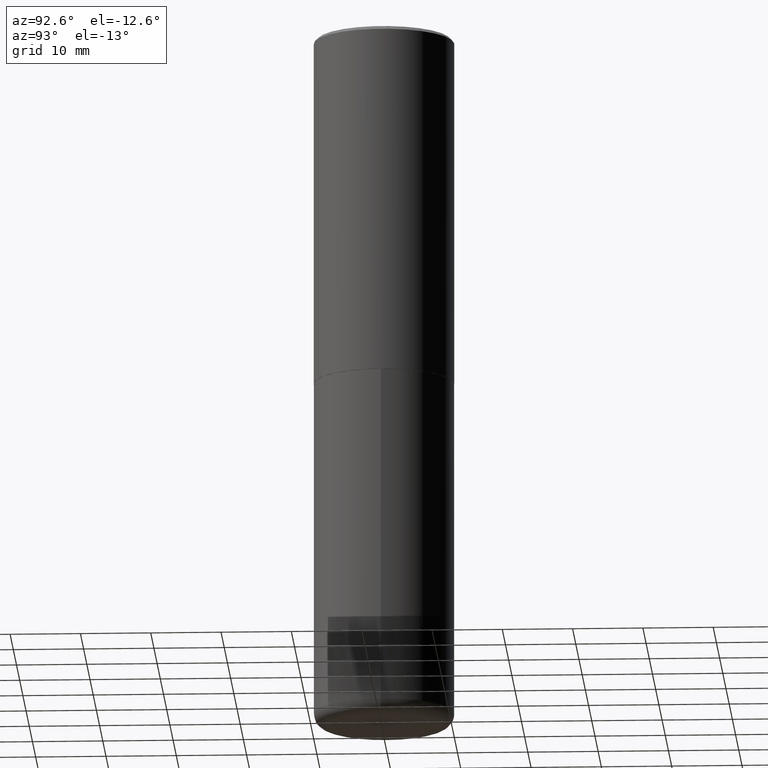
[diagram: clean part render]
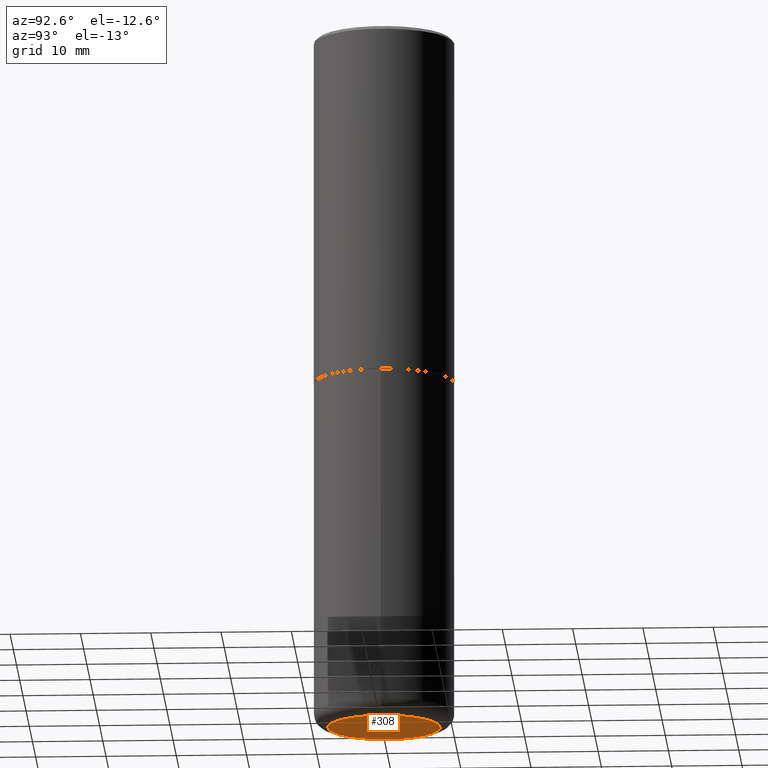
[diagram: same view with one face highlighted and labeled with its STEP entity id]
A machine part, auxiliary view. The second image highlights one B-rep face of the part: STEP entity #308.
In plain terms, the highlighted planar face has unit normal (0, -0, -1).
Its self-contained STEP definition (entity closure, byte-faithful):
#6 = VERTEX_POINT ( 'NONE', #68 ) ;
#17 = FACE_OUTER_BOUND ( 'NONE', #153, .T. ) ;
#43 = PLANE ( 'NONE',  #381 ) ;
#60 = AXIS2_PLACEMENT_3D ( 'NONE', #310, #377, #213 ) ;
#68 = CARTESIAN_POINT ( 'NONE',  ( -0.3150000000000000577, -1.109076405617607056E-14, -3.937000000000000721 ) ) ;
#87 = CIRCLE ( 'NONE', #60, 0.3150000000000000577 ) ;
#141 = CIRCLE ( 'NONE', #304, 0.3150000000000000577 ) ;
#153 = EDGE_LOOP ( 'NONE', ( #164, #361 ) ) ;
#164 = ORIENTED_EDGE ( 'NONE', *, *, #227, .F. ) ;
#179 = VERTEX_POINT ( 'NONE', #401 ) ;
#212 = DIRECTION ( 'NONE',  ( 2.438088387897960049E-29, -3.491481338843145188E-15, -1.000000000000000000 ) ) ;
#213 = DIRECTION ( 'NONE',  ( 1.000000000000000000, -6.982962677686267499E-15, 0.000000000000000000 ) ) ;
#227 = EDGE_CURVE ( 'NONE', #179, #6, #87, .T. ) ;
#240 = DIRECTION ( 'NONE',  ( 1.000000000000000000, -6.982962677686267499E-15, 0.000000000000000000 ) ) ;
#252 = DIRECTION ( 'NONE',  ( -2.445468806185136597E-29, 3.491481338843145583E-15, 1.000000000000000000 ) ) ;
#282 = DIRECTION ( 'NONE',  ( -1.000000000000000000, 6.982962677686265922E-15, -4.876176775795935793E-29 ) ) ;
#290 = EDGE_CURVE ( 'NONE', #6, #179, #141, .T. ) ;
#304 = AXIS2_PLACEMENT_3D ( 'NONE', #338, #252, #240 ) ;
#306 = CARTESIAN_POINT ( 'NONE',  ( 4.859318144497942927E-29, -2.057471476185479592E-14, -3.937000000000000277 ) ) ;
#308 = ADVANCED_FACE ( 'NONE', ( #17 ), #43, .T. ) ;
#310 = CARTESIAN_POINT ( 'NONE',  ( 9.627810689950884790E-29, -1.374596203102546657E-14, -3.937000000000000721 ) ) ;
#338 = CARTESIAN_POINT ( 'NONE',  ( 9.627810689950884790E-29, -1.374596203102546657E-14, -3.937000000000000721 ) ) ;
#361 = ORIENTED_EDGE ( 'NONE', *, *, #290, .F. ) ;
#377 = DIRECTION ( 'NONE',  ( -2.445468806185136597E-29, 3.491481338843145583E-15, 1.000000000000000000 ) ) ;
#381 = AXIS2_PLACEMENT_3D ( 'NONE', #306, #212, #282 ) ;
#401 = CARTESIAN_POINT ( 'NONE',  ( 0.3150000000000000577, -1.594559527449663995E-14, -3.937000000000000721 ) ) ;